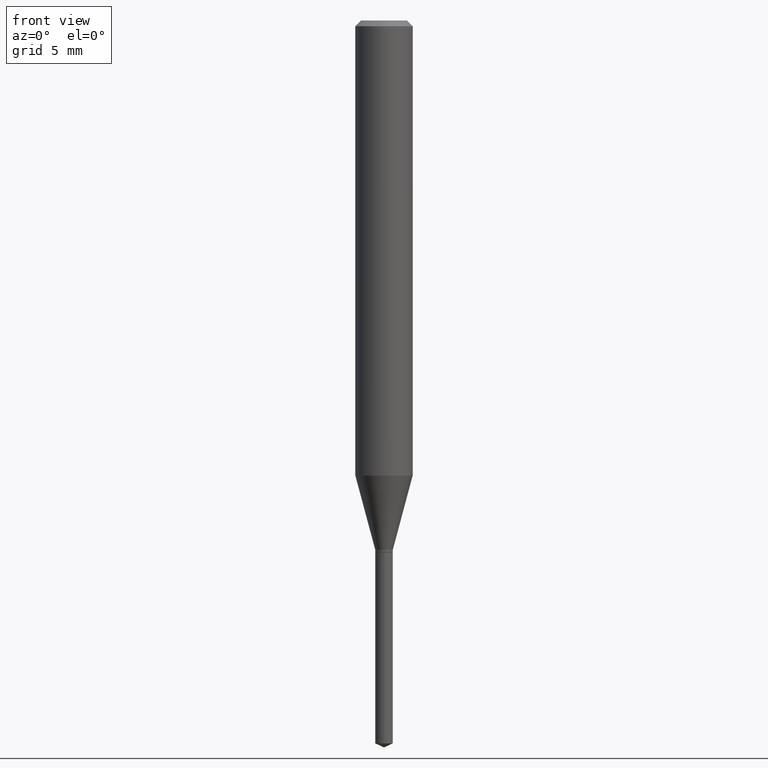
[diagram: clean part render]
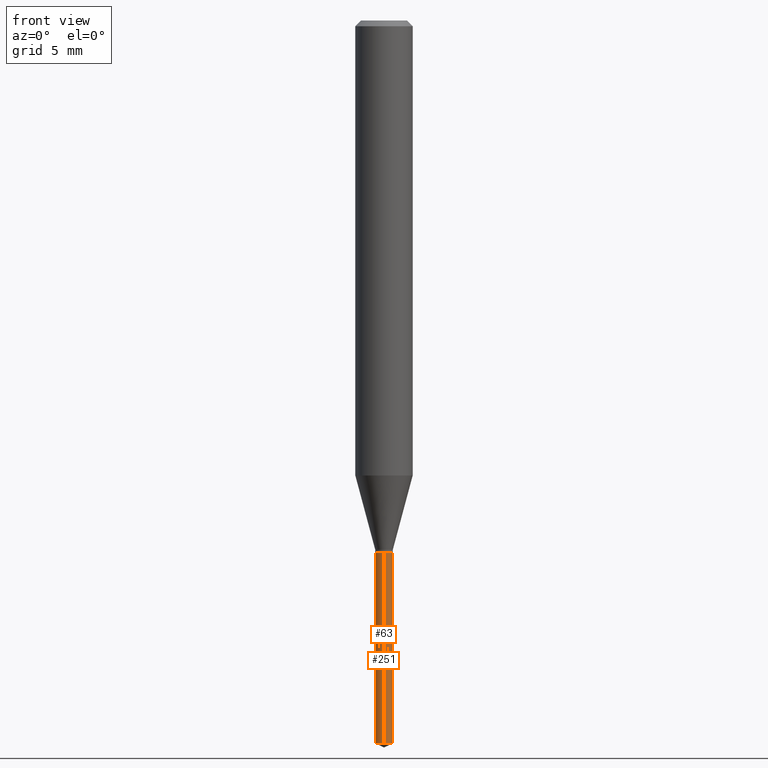
[diagram: same view with one multi-face feature highlighted, each face labeled with its STEP entity id]
A machine part, front view. The highlighted faces form ONE feature: a constant-radius fillet chain: 2 tangent blend faces with common blend radius 0.4597 mm. The faces share edges in the B-rep.
Their STEP definitions:
[1] entity #251 (Cylinder):
#17 = EDGE_CURVE ( 'NONE', #411, #427, #122, .T. ) ;
#27 = CARTESIAN_POINT ( 'NONE',  ( -1.263916244660946470E-16, -0.01810000000000382483, -1.094499999999999806 ) ) ;
#62 = CYLINDRICAL_SURFACE ( 'NONE', #232, 0.01810000000000000150 ) ;
#97 = FACE_OUTER_BOUND ( 'NONE', #123, .T. ) ;
#100 = ORIENTED_EDGE ( 'NONE', *, *, #241, .F. ) ;
#103 = CARTESIAN_POINT ( 'NONE',  ( 2.676565608369631794E-29, -3.821426325363822773E-15, -1.094499999999999806 ) ) ;
#106 = CARTESIAN_POINT ( 'NONE',  ( -1.263916244660850081E-16, -0.01810000000000519180, -1.487659831387394549 ) ) ;
#109 = ORIENTED_EDGE ( 'NONE', *, *, #17, .T. ) ;
#122 = LINE ( 'NONE', #256, #187 ) ;
#123 = EDGE_LOOP ( 'NONE', ( #374, #109, #458, #100 ) ) ;
#124 = CIRCLE ( 'NONE', #394, 0.01810000000000000150 ) ;
#128 = DIRECTION ( 'NONE',  ( -2.445470214571802116E-29, 3.491479321953280158E-15, 1.000000000000000000 ) ) ;
#131 = CARTESIAN_POINT ( 'NONE',  ( 2.676565608369631794E-29, -3.821426325363822773E-15, -1.094499999999999806 ) ) ;
#149 = CARTESIAN_POINT ( 'NONE',  ( 3.638026265593577860E-29, -5.194135746875548757E-15, -1.487659831387394549 ) ) ;
#171 = DIRECTION ( 'NONE',  ( -2.445470214571802396E-29, 3.491479321953280158E-15, 1.000000000000000000 ) ) ;
#187 = VECTOR ( 'NONE', #422, 39.37007874015748143 ) ;
#193 = DIRECTION ( 'NONE',  ( -6.982962677686265922E-15, -1.000000000000000000, 0.000000000000000000 ) ) ;
#210 = AXIS2_PLACEMENT_3D ( 'NONE', #149, #460, #193 ) ;
#214 = EDGE_CURVE ( 'NONE', #418, #427, #124, .T. ) ;
#229 = DIRECTION ( 'NONE',  ( -6.982962677686265922E-15, -1.000000000000000000, 0.000000000000000000 ) ) ;
#230 = CARTESIAN_POINT ( 'NONE',  ( -1.263916244660946470E-16, -0.01810000000000382483, -1.094499999999999806 ) ) ;
#232 = AXIS2_PLACEMENT_3D ( 'NONE', #103, #128, #391 ) ;
#240 = CIRCLE ( 'NONE', #210, 0.01810000000000000150 ) ;
#241 = EDGE_CURVE ( 'NONE', #248, #418, #357, .T. ) ;
#248 = VERTEX_POINT ( 'NONE', #106 ) ;
#251 = ADVANCED_FACE ( 'NONE', ( #97 ), #62, .T. ) ;
#256 = CARTESIAN_POINT ( 'NONE',  ( 1.286082351726048916E-16, 0.01809999999999617817, -1.094499999999999806 ) ) ;
#261 = CARTESIAN_POINT ( 'NONE',  ( 1.286082351726144812E-16, 0.01809999999999480080, -1.487659831387394549 ) ) ;
#271 = DIRECTION ( 'NONE',  ( -2.445470214571802116E-29, 3.491479321953280158E-15, 1.000000000000000000 ) ) ;
#357 = LINE ( 'NONE', #27, #369 ) ;
#369 = VECTOR ( 'NONE', #171, 39.37007874015748143 ) ;
#374 = ORIENTED_EDGE ( 'NONE', *, *, #397, .T. ) ;
#386 = CARTESIAN_POINT ( 'NONE',  ( 1.286082351726145552E-16, 0.01809999999999617817, -1.094499999999999806 ) ) ;
#391 = DIRECTION ( 'NONE',  ( -6.982962677686265922E-15, -1.000000000000000000, 0.000000000000000000 ) ) ;
#394 = AXIS2_PLACEMENT_3D ( 'NONE', #131, #271, #229 ) ;
#397 = EDGE_CURVE ( 'NONE', #248, #411, #240, .T. ) ;
#411 = VERTEX_POINT ( 'NONE', #261 ) ;
#418 = VERTEX_POINT ( 'NONE', #230 ) ;
#422 = DIRECTION ( 'NONE',  ( -2.445470214571802396E-29, 3.491479321953280158E-15, 1.000000000000000000 ) ) ;
#427 = VERTEX_POINT ( 'NONE', #386 ) ;
#458 = ORIENTED_EDGE ( 'NONE', *, *, #214, .F. ) ;
#460 = DIRECTION ( 'NONE',  ( -2.445470214571802116E-29, 3.491479321953280158E-15, 1.000000000000000000 ) ) ;
[2] entity #63 (Cylinder):
#3 = CARTESIAN_POINT ( 'NONE',  ( 3.638026265593577860E-29, -5.194135746875548757E-15, -1.487659831387394549 ) ) ;
#5 = EDGE_CURVE ( 'NONE', #411, #248, #164, .T. ) ;
#17 = EDGE_CURVE ( 'NONE', #411, #427, #122, .T. ) ;
#27 = CARTESIAN_POINT ( 'NONE',  ( -1.263916244660946470E-16, -0.01810000000000382483, -1.094499999999999806 ) ) ;
#63 = ADVANCED_FACE ( 'NONE', ( #408 ), #488, .T. ) ;
#75 = DIRECTION ( 'NONE',  ( -6.982962677686265922E-15, -1.000000000000000000, 0.000000000000000000 ) ) ;
#93 = DIRECTION ( 'NONE',  ( -6.982962677686265922E-15, -1.000000000000000000, 0.000000000000000000 ) ) ;
#106 = CARTESIAN_POINT ( 'NONE',  ( -1.263916244660850081E-16, -0.01810000000000519180, -1.487659831387394549 ) ) ;
#110 = CARTESIAN_POINT ( 'NONE',  ( 2.676565608369631794E-29, -3.821426325363822773E-15, -1.094499999999999806 ) ) ;
#122 = LINE ( 'NONE', #256, #187 ) ;
#150 = DIRECTION ( 'NONE',  ( -2.445470214571802116E-29, 3.491479321953280158E-15, 1.000000000000000000 ) ) ;
#164 = CIRCLE ( 'NONE', #445, 0.01810000000000000150 ) ;
#171 = DIRECTION ( 'NONE',  ( -2.445470214571802396E-29, 3.491479321953280158E-15, 1.000000000000000000 ) ) ;
#187 = VECTOR ( 'NONE', #422, 39.37007874015748143 ) ;
#188 = ORIENTED_EDGE ( 'NONE', *, *, #416, .F. ) ;
#211 = DIRECTION ( 'NONE',  ( -2.445470214571802116E-29, 3.491479321953280158E-15, 1.000000000000000000 ) ) ;
#230 = CARTESIAN_POINT ( 'NONE',  ( -1.263916244660946470E-16, -0.01810000000000382483, -1.094499999999999806 ) ) ;
#241 = EDGE_CURVE ( 'NONE', #248, #418, #357, .T. ) ;
#245 = ORIENTED_EDGE ( 'NONE', *, *, #241, .T. ) ;
#248 = VERTEX_POINT ( 'NONE', #106 ) ;
#250 = ORIENTED_EDGE ( 'NONE', *, *, #17, .F. ) ;
#256 = CARTESIAN_POINT ( 'NONE',  ( 1.286082351726048916E-16, 0.01809999999999617817, -1.094499999999999806 ) ) ;
#261 = CARTESIAN_POINT ( 'NONE',  ( 1.286082351726144812E-16, 0.01809999999999480080, -1.487659831387394549 ) ) ;
#286 = ORIENTED_EDGE ( 'NONE', *, *, #5, .T. ) ;
#300 = DIRECTION ( 'NONE',  ( -2.445470214571802116E-29, 3.491479321953280158E-15, 1.000000000000000000 ) ) ;
#313 = AXIS2_PLACEMENT_3D ( 'NONE', #428, #300, #93 ) ;
#357 = LINE ( 'NONE', #27, #369 ) ;
#369 = VECTOR ( 'NONE', #171, 39.37007874015748143 ) ;
#386 = CARTESIAN_POINT ( 'NONE',  ( 1.286082351726145552E-16, 0.01809999999999617817, -1.094499999999999806 ) ) ;
#408 = FACE_OUTER_BOUND ( 'NONE', #419, .T. ) ;
#411 = VERTEX_POINT ( 'NONE', #261 ) ;
#416 = EDGE_CURVE ( 'NONE', #427, #418, #489, .T. ) ;
#418 = VERTEX_POINT ( 'NONE', #230 ) ;
#419 = EDGE_LOOP ( 'NONE', ( #250, #286, #245, #188 ) ) ;
#421 = AXIS2_PLACEMENT_3D ( 'NONE', #110, #211, #448 ) ;
#422 = DIRECTION ( 'NONE',  ( -2.445470214571802396E-29, 3.491479321953280158E-15, 1.000000000000000000 ) ) ;
#427 = VERTEX_POINT ( 'NONE', #386 ) ;
#428 = CARTESIAN_POINT ( 'NONE',  ( 2.676565608369631794E-29, -3.821426325363822773E-15, -1.094499999999999806 ) ) ;
#445 = AXIS2_PLACEMENT_3D ( 'NONE', #3, #150, #75 ) ;
#448 = DIRECTION ( 'NONE',  ( -6.982962677686265922E-15, -1.000000000000000000, 0.000000000000000000 ) ) ;
#488 = CYLINDRICAL_SURFACE ( 'NONE', #421, 0.01810000000000000150 ) ;
#489 = CIRCLE ( 'NONE', #313, 0.01810000000000000150 ) ;